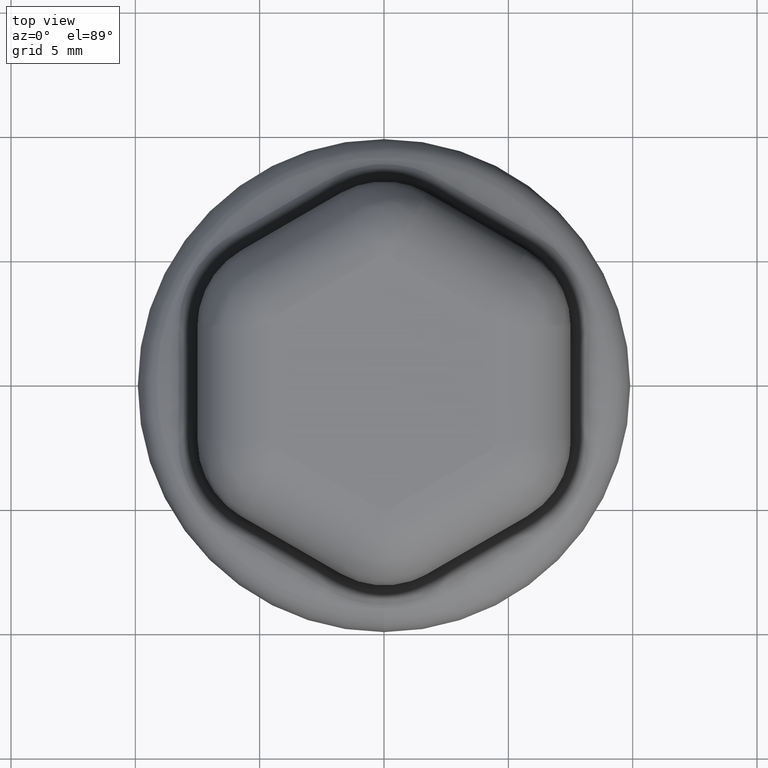
[diagram: clean part render]
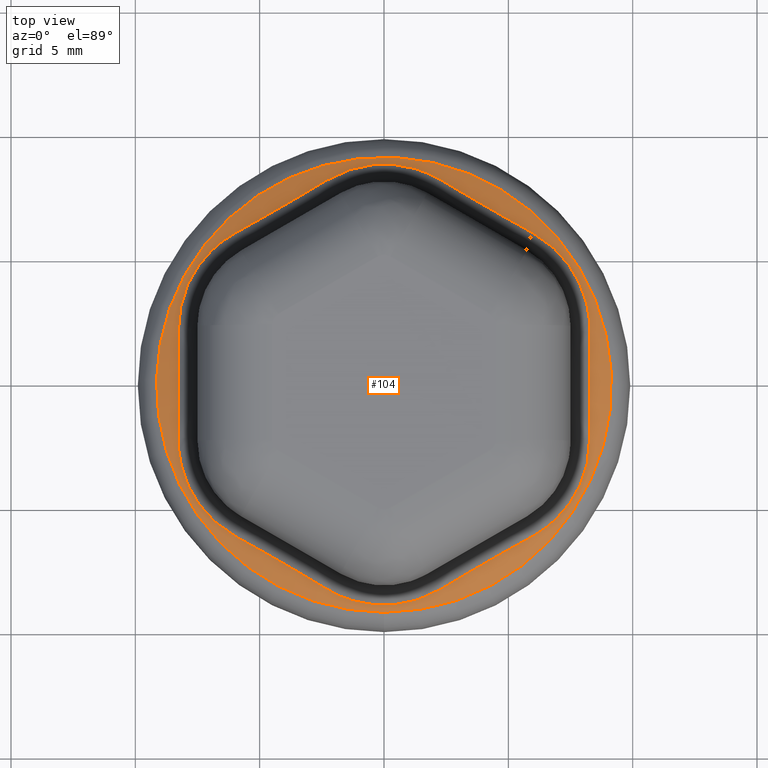
[diagram: same view with one face highlighted and labeled with its STEP entity id]
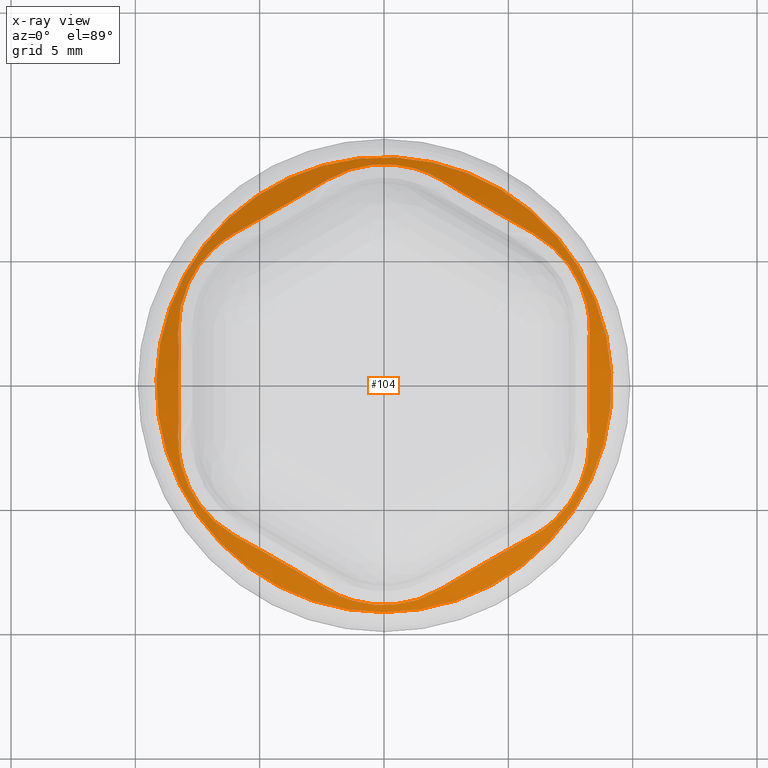
[diagram: x-ray of the same camera — body ghosted, the highlighted face saturated]
A machine part, top view. The second image highlights one B-rep face of the part: STEP entity #104.
The next image is the same camera in x-ray: the body ghosted, the highlighted face saturated — about 0% of this face is hidden behind the body in this view.
In plain terms, the highlighted conical surface has half-angle 60 deg.
Its self-contained STEP definition (entity closure, byte-faithful):
#104 = ADVANCED_FACE( '', ( #216, #217 ), #218, .T. );
#216 = FACE_BOUND( '', #1636, .T. );
#217 = FACE_OUTER_BOUND( '', #1637, .T. );
#218 = CONICAL_SURFACE( '', #1638, 9.90000000000000, 1.04719755119660 );
#1636 = EDGE_LOOP( '', ( #2901, #2902, #2903, #2904, #2905, #2906, #2907, #2908, #2909, #2910, #2911, #2912 ) );
#1637 = EDGE_LOOP( '', ( #2913 ) );
#1638 = AXIS2_PLACEMENT_3D( '', #2914, #2915, #2916 );
#2901 = ORIENTED_EDGE( '', *, *, #3314, .T. );
#2902 = ORIENTED_EDGE( '', *, *, #3310, .T. );
#2903 = ORIENTED_EDGE( '', *, *, #3312, .T. );
#2904 = ORIENTED_EDGE( '', *, *, #3315, .T. );
#2905 = ORIENTED_EDGE( '', *, *, #3316, .T. );
#2906 = ORIENTED_EDGE( '', *, *, #3317, .T. );
#2907 = ORIENTED_EDGE( '', *, *, #3318, .T. );
#2908 = ORIENTED_EDGE( '', *, *, #3319, .T. );
#2909 = ORIENTED_EDGE( '', *, *, #3320, .T. );
#2910 = ORIENTED_EDGE( '', *, *, #3321, .T. );
#2911 = ORIENTED_EDGE( '', *, *, #3322, .T. );
#2912 = ORIENTED_EDGE( '', *, *, #3323, .T. );
#2913 = ORIENTED_EDGE( '', *, *, #3305, .T. );
#2914 = CARTESIAN_POINT( '', ( 0.000000000000000, 1.44872487138979E-016, 2.36602540378443 ) );
#2915 = DIRECTION( '', ( 0.000000000000000, -6.12303176911189E-017, -1.00000000000000 ) );
#2916 = DIRECTION( '', ( 0.000000000000000, 1.00000000000000, -6.12303176911189E-017 ) );
#3305 = EDGE_CURVE( '', #3518, #3518, #3519, .T. );
#3310 = EDGE_CURVE( '', #3522, #3527, #3529, .T. );
#3312 = EDGE_CURVE( '', #3527, #3531, #3533, .T. );
#3314 = EDGE_CURVE( '', #3535, #3522, #3536, .T. );
#3315 = EDGE_CURVE( '', #3531, #3537, #3538, .T. );
#3316 = EDGE_CURVE( '', #3537, #3539, #3540, .T. );
#3317 = EDGE_CURVE( '', #3539, #3541, #3542, .T. );
#3318 = EDGE_CURVE( '', #3541, #3543, #3544, .T. );
#3319 = EDGE_CURVE( '', #3543, #3545, #3546, .T. );
#3320 = EDGE_CURVE( '', #3545, #3547, #3548, .T. );
#3321 = EDGE_CURVE( '', #3547, #3549, #3550, .T. );
#3322 = EDGE_CURVE( '', #3549, #3551, #3552, .T. );
#3323 = EDGE_CURVE( '', #3551, #3535, #3553, .T. );
#3518 = VERTEX_POINT( '', #4482 );
#3519 = CIRCLE( '', #4483, 9.15000000000001 );
#3522 = VERTEX_POINT( '', #4486 );
#3527 = VERTEX_POINT( '', #4521 );
#3529 = B_SPLINE_CURVE_WITH_KNOTS( '', 3, ( #4523, #4524, #4525, #4526, #4527, #4528, #4529, #4530, #4531, #4532, #4533, #4534, #4535, #4536, #4537, #4538, #4539, #4540, #4541, #4542, #4543, #4544, #4545, #4546, #4547, #4548, #4549, #4550, #4551 ), .UNSPECIFIED., .F., .F., ( 4, 2, 2, 1, 1, 1, 1, 1, 2, 2, 1, 1, 1, 1, 1, 2, 2, 1, 1, 1, 4 ), ( 0.000000000000000, 0.000305932596719819, 0.000382415745899774, 0.000458898895079729, 0.000611865193439639, 0.000917797790159460, 0.00122373038687928, 0.00152966298359910, 0.00183559558031893, 0.00191207872949888, 0.00198856187867884, 0.00214152817703875, 0.00244746077375858, 0.00275339337047841, 0.00305932596719824, 0.00336525856391807, 0.00367119116063790, 0.00397712375735773, 0.00428305635407756, 0.00458898895079739, 0.00489492154751722 ), .UNSPECIFIED. );
#3531 = VERTEX_POINT( '', #4553 );
#3533 = B_SPLINE_CURVE_WITH_KNOTS( '', 3, ( #4555, #4556, #4557, #4558, #4559, #4560, #4561, #4562, #4563, #4564, #4565, #4566, #4567, #4568, #4569, #4570, #4571, #4572 ), .UNSPECIFIED., .F., .F., ( 4, 2, 1, 1, 1, 2, 2, 2, 1, 2, 4 ), ( 0.000000000000000, 0.000531276195801026, 0.00106255239160205, 0.00159382858740308, 0.00212510478320410, 0.00265638097900513, 0.00292201907690564, 0.00305483812585590, 0.00318765717480615, 0.00371893337060718, 0.00425020956640820 ), .UNSPECIFIED. );
#3535 = VERTEX_POINT( '', #4584 );
#3536 = B_SPLINE_CURVE_WITH_KNOTS( '', 3, ( #4585, #4586, #4587, #4588, #4589, #4590, #4591, #4592, #4593, #4594, #4595, #4596, #4597, #4598, #4599, #4600, #4601, #4602 ), .UNSPECIFIED., .F., .F., ( 4, 2, 1, 1, 1, 2, 2, 2, 1, 2, 4 ), ( 0.000000000000000, 0.000531276195801025, 0.00106255239160205, 0.00159382858740308, 0.00212510478320410, 0.00265638097900513, 0.00292201907690564, 0.00305483812585590, 0.00318765717480615, 0.00371893337060718, 0.00425020956640820 ), .UNSPECIFIED. );
#3537 = VERTEX_POINT( '', #4603 );
#3538 = B_SPLINE_CURVE_WITH_KNOTS( '', 3, ( #4604, #4605, #4606, #4607, #4608, #4609, #4610, #4611, #4612, #4613, #4614, #4615, #4616, #4617, #4618, #4619, #4620, #4621, #4622, #4623, #4624, #4625, #4626, #4627, #4628, #4629, #4630, #4631, #4632 ), .UNSPECIFIED., .F., .F., ( 4, 2, 2, 1, 1, 1, 1, 1, 2, 2, 1, 1, 1, 1, 1, 2, 2, 1, 1, 1, 4 ), ( 0.000000000000000, 0.000305932596719830, 0.000382415745899787, 0.000458898895079745, 0.000611865193439660, 0.000917797790159491, 0.00122373038687932, 0.00152966298359915, 0.00183559558031898, 0.00191207872949894, 0.00198856187867890, 0.00214152817703881, 0.00244746077375863, 0.00275339337047845, 0.00305932596719828, 0.00336525856391810, 0.00367119116063792, 0.00397712375735775, 0.00428305635407757, 0.00458898895079739, 0.00489492154751722 ), .UNSPECIFIED. );
#3539 = VERTEX_POINT( '', #4633 );
#3540 = B_SPLINE_CURVE_WITH_KNOTS( '', 3, ( #4634, #4635, #4636, #4637, #4638, #4639, #4640, #4641, #4642, #4643, #4644, #4645, #4646, #4647, #4648, #4649, #4650, #4651 ), .UNSPECIFIED., .F., .F., ( 4, 2, 1, 1, 1, 2, 2, 2, 1, 2, 4 ), ( 0.000000000000000, 0.000531276195801026, 0.00106255239160205, 0.00159382858740308, 0.00212510478320411, 0.00265638097900513, 0.00292201907690565, 0.00305483812585590, 0.00318765717480616, 0.00371893337060718, 0.00425020956640821 ), .UNSPECIFIED. );
#3541 = VERTEX_POINT( '', #4652 );
#3542 = B_SPLINE_CURVE_WITH_KNOTS( '', 3, ( #4653, #4654, #4655, #4656, #4657, #4658, #4659, #4660, #4661, #4662, #4663, #4664, #4665, #4666, #4667, #4668, #4669, #4670, #4671, #4672, #4673, #4674, #4675, #4676, #4677, #4678, #4679, #4680, #4681 ), .UNSPECIFIED., .F., .F., ( 4, 2, 2, 1, 1, 1, 1, 1, 2, 2, 1, 1, 1, 1, 1, 2, 2, 1, 1, 1, 4 ), ( 4.33680868994202E-019, 0.000305932596719821, 0.000382415745899777, 0.000458898895079733, 0.000611865193439646, 0.000917797790159471, 0.00122373038687930, 0.00152966298359912, 0.00183559558031895, 0.00191207872949890, 0.00198856187867886, 0.00214152817703877, 0.00244746077375860, 0.00275339337047843, 0.00305932596719825, 0.00336525856391808, 0.00367119116063791, 0.00397712375735773, 0.00428305635407756, 0.00458898895079739, 0.00489492154751722 ), .UNSPECIFIED. );
#3543 = VERTEX_POINT( '', #4682 );
#3544 = B_SPLINE_CURVE_WITH_KNOTS( '', 3, ( #4683, #4684, #4685, #4686, #4687, #4688, #4689, #4690, #4691, #4692, #4693, #4694, #4695, #4696, #4697, #4698, #4699, #4700 ), .UNSPECIFIED., .F., .F., ( 4, 2, 1, 1, 1, 2, 2, 2, 1, 2, 4 ), ( 0.000000000000000, 0.000531276195801025, 0.00106255239160205, 0.00159382858740308, 0.00212510478320410, 0.00265638097900512, 0.00292201907690563, 0.00305483812585589, 0.00318765717480614, 0.00371893337060717, 0.00425020956640820 ), .UNSPECIFIED. );
#3545 = VERTEX_POINT( '', #4701 );
#3546 = B_SPLINE_CURVE_WITH_KNOTS( '', 3, ( #4702, #4703, #4704, #4705, #4706, #4707, #4708, #4709, #4710, #4711, #4712, #4713, #4714, #4715, #4716, #4717, #4718, #4719, #4720, #4721, #4722, #4723, #4724, #4725, #4726, #4727, #4728, #4729, #4730 ), .UNSPECIFIED., .F., .F., ( 4, 2, 2, 1, 1, 1, 1, 1, 2, 2, 1, 1, 1, 1, 1, 2, 2, 1, 1, 1, 4 ), ( 0.000000000000000, 0.000305932596719831, 0.000382415745899789, 0.000458898895079747, 0.000611865193439663, 0.000917797790159497, 0.00122373038687933, 0.00152966298359917, 0.00183559558031900, 0.00191207872949896, 0.00198856187867891, 0.00214152817703882, 0.00244746077375864, 0.00275339337047846, 0.00305932596719828, 0.00336525856391811, 0.00367119116063793, 0.00397712375735775, 0.00428305635407757, 0.00458898895079740, 0.00489492154751722 ), .UNSPECIFIED. );
#3547 = VERTEX_POINT( '', #4731 );
#3548 = B_SPLINE_CURVE_WITH_KNOTS( '', 3, ( #4732, #4733, #4734, #4735, #4736, #4737, #4738, #4739, #4740, #4741, #4742, #4743, #4744, #4745, #4746, #4747, #4748, #4749 ), .UNSPECIFIED., .F., .F., ( 4, 2, 1, 1, 1, 2, 2, 2, 1, 2, 4 ), ( 0.000000000000000, 0.000531276195801026, 0.00106255239160205, 0.00159382858740308, 0.00212510478320410, 0.00265638097900513, 0.00292201907690564, 0.00305483812585590, 0.00318765717480615, 0.00371893337060718, 0.00425020956640821 ), .UNSPECIFIED. );
#3549 = VERTEX_POINT( '', #4750 );
#3550 = B_SPLINE_CURVE_WITH_KNOTS( '', 3, ( #4751, #4752, #4753, #4754, #4755, #4756, #4757, #4758, #4759, #4760, #4761, #4762, #4763, #4764, #4765, #4766, #4767, #4768, #4769, #4770, #4771, #4772, #4773, #4774, #4775, #4776, #4777, #4778, #4779 ), .UNSPECIFIED., .F., .F., ( 4, 2, 2, 1, 1, 1, 1, 1, 2, 2, 1, 1, 1, 1, 1, 2, 2, 1, 1, 1, 4 ), ( 0.000000000000000, 0.000305932596719829, 0.000382415745899786, 0.000458898895079743, 0.000611865193439658, 0.000917797790159486, 0.00122373038687932, 0.00152966298359914, 0.00183559558031897, 0.00191207872949893, 0.00198856187867888, 0.00214152817703880, 0.00244746077375862, 0.00275339337047845, 0.00305932596719827, 0.00336525856391809, 0.00367119116063792, 0.00397712375735774, 0.00428305635407757, 0.00458898895079739, 0.00489492154751722 ), .UNSPECIFIED. );
#3551 = VERTEX_POINT( '', #4780 );
#3552 = B_SPLINE_CURVE_WITH_KNOTS( '', 3, ( #4781, #4782, #4783, #4784, #4785, #4786, #4787, #4788, #4789, #4790, #4791, #4792, #4793, #4794, #4795, #4796, #4797, #4798 ), .UNSPECIFIED., .F., .F., ( 4, 2, 1, 1, 1, 2, 2, 2, 1, 2, 4 ), ( 0.000000000000000, 0.000531276195801026, 0.00106255239160205, 0.00159382858740308, 0.00212510478320410, 0.00265638097900513, 0.00292201907690564, 0.00305483812585590, 0.00318765717480615, 0.00371893337060718, 0.00425020956640820 ), .UNSPECIFIED. );
#3553 = B_SPLINE_CURVE_WITH_KNOTS( '', 3, ( #4799, #4800, #4801, #4802, #4803, #4804, #4805, #4806, #4807, #4808, #4809, #4810, #4811, #4812, #4813, #4814, #4815, #4816, #4817, #4818, #4819, #4820, #4821, #4822, #4823, #4824, #4825, #4826, #4827 ), .UNSPECIFIED., .F., .F., ( 4, 2, 2, 1, 1, 1, 1, 1, 2, 2, 1, 1, 1, 1, 1, 2, 2, 1, 1, 1, 4 ), ( 4.33680868994202E-019, 0.000305932596719822, 0.000382415745899779, 0.000458898895079735, 0.000611865193439647, 0.000917797790159473, 0.00122373038687930, 0.00152966298359913, 0.00183559558031895, 0.00191207872949891, 0.00198856187867887, 0.00214152817703878, 0.00244746077375860, 0.00275339337047843, 0.00305932596719826, 0.00336525856391808, 0.00367119116063791, 0.00397712375735774, 0.00428305635407756, 0.00458898895079739, 0.00489492154751722 ), .UNSPECIFIED. );
#4482 = CARTESIAN_POINT( '', ( 0.000000000000000, -9.15000000000001, 2.79903810567665 ) );
#4483 = AXIS2_PLACEMENT_3D( '', #5278, #5279, #5280 );
#4486 = CARTESIAN_POINT( '', ( 5.97533104756189, 6.10359667250466, 3.15031345751025 ) );
#4521 = CARTESIAN_POINT( '', ( 8.27353529662415, 2.12299014695814, 3.15031345751025 ) );
#4523 = CARTESIAN_POINT( '', ( 5.97533104756189, 6.10359667250466, 3.15031345751025 ) );
#4524 = CARTESIAN_POINT( '', ( 6.06370105840983, 6.05502382574819, 3.13466088655042 ) );
#4525 = CARTESIAN_POINT( '', ( 6.15043367421124, 6.00344222798260, 3.11995533240995 ) );
#4526 = CARTESIAN_POINT( '', ( 6.25678116258254, 5.93517394375792, 3.10273703300507 ) );
#4527 = CARTESIAN_POINT( '', ( 6.27793707454782, 5.92133664568301, 3.09935331380747 ) );
#4528 = CARTESIAN_POINT( '', ( 6.31994011128267, 5.89335039010389, 3.09271773751738 ) );
#4529 = CARTESIAN_POINT( '', ( 6.38251710194348, 5.85088068846419, 3.08295640162640 ) );
#4530 = CARTESIAN_POINT( '', ( 6.52555459213102, 5.74837346681437, 3.06150898358349 ) );
#4531 = CARTESIAN_POINT( '', ( 6.72147813122799, 5.59229154706956, 3.03458877511924 ) );
#4532 = CARTESIAN_POINT( '', ( 6.94322944448473, 5.38970257541155, 3.00807793266292 ) );
#4533 = CARTESIAN_POINT( '', ( 7.15155075178573, 5.17175094361030, 2.98730235946904 ) );
#4534 = CARTESIAN_POINT( '', ( 7.28130675414834, 5.01601804872510, 2.97730110531768 ) );
#4535 = CARTESIAN_POINT( '', ( 7.35945634757087, 4.91531628768460, 2.97228281716163 ) );
#4536 = CARTESIAN_POINT( '', ( 7.37489856991075, 4.89505876461139, 2.97134348312564 ) );
#4537 = CARTESIAN_POINT( '', ( 7.40538145938462, 4.85434919667169, 2.96959405207174 ) );
#4538 = CARTESIAN_POINT( '', ( 7.45051773835728, 4.79297451656432, 2.96716287272035 ) );
#4539 = CARTESIAN_POINT( '', ( 7.55175092326567, 4.64761128054453, 2.96282870670483 ) );
#4540 = CARTESIAN_POINT( '', ( 7.68485799214472, 4.43387437083835, 2.96040062443478 ) );
#4541 = CARTESIAN_POINT( '', ( 7.82643646536729, 4.16781159867171, 2.96341087034859 ) );
#4542 = CARTESIAN_POINT( '', ( 7.94987899243765, 3.89217788295468, 2.97235047600628 ) );
#4543 = CARTESIAN_POINT( '', ( 8.01992476886664, 3.70195797093649, 2.98233509841634 ) );
#4544 = CARTESIAN_POINT( '', ( 8.08367743460382, 3.50841729131060, 2.99440469443230 ) );
#4545 = CARTESIAN_POINT( '', ( 8.11200478878512, 3.41120661950364, 3.00140615098900 ) );
#4546 = CARTESIAN_POINT( '', ( 8.16178858674446, 3.21597983253240, 3.01729702188211 ) );
#4547 = CARTESIAN_POINT( '', ( 8.20470557034853, 3.01993294558525, 3.03507694897649 ) );
#4548 = CARTESIAN_POINT( '', ( 8.24889306727805, 2.72346102150788, 3.06738697159861 ) );
#4549 = CARTESIAN_POINT( '', ( 8.27302598398934, 2.42461479013872, 3.10540432693602 ) );
#4550 = CARTESIAN_POINT( '', ( 8.27565481863560, 2.22379943554250, 3.13466209897194 ) );
#4551 = CARTESIAN_POINT( '', ( 8.27353529662415, 2.12299014695814, 3.15031345751025 ) );
#4553 = CARTESIAN_POINT( '', ( 8.27353529662415, -2.12299014695814, 3.15031345751025 ) );
#4555 = CARTESIAN_POINT( '', ( 8.27353529662415, 2.12299014695814, 3.15031345751025 ) );
#4556 = CARTESIAN_POINT( '', ( 8.26983475855589, 1.94698413804413, 3.17763964132817 ) );
#4557 = CARTESIAN_POINT( '', ( 8.26649772354413, 1.77083381961615, 3.20186613572889 ) );
#4558 = CARTESIAN_POINT( '', ( 8.26067069789646, 1.41822640722744, 3.24374008205989 ) );
#4559 = CARTESIAN_POINT( '', ( 8.25569145490720, 1.06531213802335, 3.27903331417591 ) );
#4560 = CARTESIAN_POINT( '', ( 8.25106290429318, 0.534975804215642, 3.31130394730319 ) );
#4561 = CARTESIAN_POINT( '', ( 8.24947879657556, 0.00364353599115344, 3.32225692582110 ) );
#4562 = CARTESIAN_POINT( '', ( 8.25050775928951, -0.351251640793457, 3.31514291378919 ) );
#4563 = CARTESIAN_POINT( '', ( 8.25204973918207, -0.617674910593655, 3.30441587802473 ) );
#4564 = CARTESIAN_POINT( '', ( 8.25269176683085, -0.706524602162597, 3.29994257336327 ) );
#4565 = CARTESIAN_POINT( '', ( 8.25384243499703, -0.839861542432009, 3.29189646690185 ) );
#4566 = CARTESIAN_POINT( '', ( 8.25425736081434, -0.884329050981608, 3.28899096458533 ) );
#4567 = CARTESIAN_POINT( '', ( 8.25514810711896, -0.973222525207466, 3.28274156752851 ) );
#4568 = CARTESIAN_POINT( '', ( 8.25752664285307, -1.19533124505681, 3.26602505898709 ) );
#4569 = CARTESIAN_POINT( '', ( 8.26064891886393, -1.41682122788283, 3.24389574781520 ) );
#4570 = CARTESIAN_POINT( '', ( 8.26649003581644, -1.77045545498755, 3.20192221862969 ) );
#4571 = CARTESIAN_POINT( '', ( 8.26983294336894, -1.94689780362374, 3.17765304536054 ) );
#4572 = CARTESIAN_POINT( '', ( 8.27353529662415, -2.12299014695814, 3.15031345751025 ) );
#4584 = CARTESIAN_POINT( '', ( 2.29820424906226, 8.22658681946281, 3.15031345751025 ) );
#4585 = CARTESIAN_POINT( '', ( 2.29820424906226, 8.22658681946281, 3.15031345751025 ) );
#4586 = CARTESIAN_POINT( '', ( 2.44877965496638, 8.13537905503101, 3.17763964132817 ) );
#4587 = CARTESIAN_POINT( '', ( 2.59966178810385, 8.04441393872352, 3.20186613572889 ) );
#4588 = CARTESIAN_POINT( '', ( 2.90211525197133, 7.86306388028978, 3.24374008205989 ) );
#4589 = CARTESIAN_POINT( '', ( 3.20525816334999, 7.68229433587515, 3.27903402875314 ) );
#4590 = CARTESIAN_POINT( '', ( 3.66222881528583, 7.41311798544912, 3.31130394730319 ) );
#4591 = CARTESIAN_POINT( '', ( 4.12158400355984, 7.14607997381109, 3.32225692582110 ) );
#4592 = CARTESIAN_POINT( '', ( 4.42944672369286, 6.96952349326862, 3.31514291378919 ) );
#4593 = CARTESIAN_POINT( '', ( 4.66094703344542, 6.83764725212759, 3.30441587802473 ) );
#4594 = CARTESIAN_POINT( '', ( 4.73821413728692, 6.79377841859690, 3.29994257336327 ) );
#4595 = CARTESIAN_POINT( '', ( 4.85426264890622, 6.72810645632543, 3.29189646690185 ) );
#4596 = CARTESIAN_POINT( '', ( 4.89298010386182, 6.70623203834911, 3.28899096458533 ) );
#4597 = CARTESIAN_POINT( '', ( 4.97040948392438, 6.66255671016430, 3.28274156752851 ) );
#4598 = CARTESIAN_POINT( '', ( 5.16395054558302, 6.55356222260919, 3.26602505898709 ) );
#4599 = CARTESIAN_POINT( '', ( 5.35732763539956, 6.44552120153921, 3.24389574781520 ) );
#4600 = CARTESIAN_POINT( '', ( 5.66650441819618, 6.27376264365419, 3.20192221862969 ) );
#4601 = CARTESIAN_POINT( '', ( 5.82097942819476, 6.18843651219908, 3.17765304536054 ) );
#4602 = CARTESIAN_POINT( '', ( 5.97533104756189, 6.10359667250466, 3.15031345751025 ) );
#4603 = CARTESIAN_POINT( '', ( 5.97533104756189, -6.10359667250466, 3.15031345751025 ) );
#4604 = CARTESIAN_POINT( '', ( 8.27353529662415, -2.12299014695814, 3.15031345751025 ) );
#4605 = CARTESIAN_POINT( '', ( 8.27565498282289, -2.22380724466341, 3.13466088655042 ) );
#4606 = CARTESIAN_POINT( '', ( 8.27435031669080, -2.32471069216690, 3.11995533240995 ) );
#4607 = CARTESIAN_POINT( '', ( 8.26840199246510, -2.45094446083746, 3.10273703300507 ) );
#4608 = CARTESIAN_POINT( '', ( 8.26699649679514, -2.47618466707706, 3.09935331380746 ) );
#4609 = CARTESIAN_POINT( '', ( 8.26376120687424, -2.52655349171510, 3.09271773751738 ) );
#4610 = CARTESIAN_POINT( '', ( 8.25826986169352, -2.60198160613959, 3.08295640162639 ) );
#4611 = CARTESIAN_POINT( '', ( 8.24101474876719, -2.77710931716047, 3.06150898358350 ) );
#4612 = CARTESIAN_POINT( '', ( 8.20380561074521, -3.02482503909021, 3.03458877511924 ) );
#4613 = CARTESIAN_POINT( '', ( 8.13923407139118, -3.31816179552212, 3.00807793266292 ) );
#4614 = CARTESIAN_POINT( '', ( 8.05464307510552, -3.60754915569499, 2.98730235946905 ) );
#4615 = CARTESIAN_POINT( '', ( 7.98465243311136, -3.79778759747712, 2.97730110531768 ) );
#4616 = CARTESIAN_POINT( '', ( 7.93651694655572, -3.91581801119671, 2.97228281716163 ) );
#4617 = CARTESIAN_POINT( '', ( 7.92669452812651, -3.93932012957054, 2.97134348312564 ) );
#4618 = CARTESIAN_POINT( '', ( 7.90668045285058, -3.98607387020552, 2.96959405207174 ) );
#4619 = CARTESIAN_POINT( '', ( 7.87609656021478, -4.05585037448183, 2.96716287272035 ) );
#4620 = CARTESIAN_POINT( '', ( 7.80082489749953, -4.21620250232839, 2.96282870670483 ) );
#4621 = CARTESIAN_POINT( '', ( 7.68227683840712, -4.43834506025402, 2.96040062443478 ) );
#4622 = CARTESIAN_POINT( '', ( 7.52264895532078, -4.69398700077710, 2.96341087034859 ) );
#4623 = CARTESIAN_POINT( '', ( 7.34566413985144, -4.93870804699041, 2.97235060603289 ) );
#4624 = CARTESIAN_POINT( '', ( 7.21595203100662, -5.09447960081031, 2.98233509841634 ) );
#4625 = CARTESIAN_POINT( '', ( 7.08021721865348, -5.24646136871062, 2.99440469443230 ) );
#4626 = CARTESIAN_POINT( '', ( 7.01019398444035, -5.31959891295711, 3.00140615098900 ) );
#4627 = CARTESIAN_POINT( '', ( 6.86601452640371, -5.46032634017239, 3.01729702188211 ) );
#4628 = CARTESIAN_POINT( '', ( 6.71769143377667, -5.59551698170089, 3.03507694897648 ) );
#4629 = CARTESIAN_POINT( '', ( 6.48303296448158, -5.78202043861019, 3.06738697159861 ) );
#4630 = CARTESIAN_POINT( '', ( 6.23629099464627, -5.95234327323416, 3.10540432693602 ) );
#4631 = CARTESIAN_POINT( '', ( 6.06369421341911, -6.05502758811828, 3.13466209897194 ) );
#4632 = CARTESIAN_POINT( '', ( 5.97533104756189, -6.10359667250466, 3.15031345751025 ) );
#4633 = CARTESIAN_POINT( '', ( 2.29820424906226, -8.22658681946281, 3.15031345751025 ) );
#4634 = CARTESIAN_POINT( '', ( 5.97533104756189, -6.10359667250466, 3.15031345751025 ) );
#4635 = CARTESIAN_POINT( '', ( 5.82105510358951, -6.18839491698689, 3.17763964132817 ) );
#4636 = CARTESIAN_POINT( '', ( 5.66683593544028, -6.27358011910737, 3.20186613572889 ) );
#4637 = CARTESIAN_POINT( '', ( 5.35855544592513, -6.44483747306234, 3.24374008205989 ) );
#4638 = CARTESIAN_POINT( '', ( 5.05043297254219, -6.61698216308612, 3.27903402875314 ) );
#4639 = CARTESIAN_POINT( '', ( 4.58883408900735, -6.87814218123348, 3.31130394730319 ) );
#4640 = CARTESIAN_POINT( '', ( 4.12789479301572, -7.14243643781994, 3.32225692582110 ) );
#4641 = CARTESIAN_POINT( '', ( 3.82106103559666, -7.32077513406207, 3.31514291378919 ) );
#4642 = CARTESIAN_POINT( '', ( 3.59110270573665, -7.45532216272125, 3.30441587802473 ) );
#4643 = CARTESIAN_POINT( '', ( 3.51447762954392, -7.50030302075949, 3.29994257336327 ) );
#4644 = CARTESIAN_POINT( '', ( 3.39957978609081, -7.56796799875744, 3.29189646690186 ) );
#4645 = CARTESIAN_POINT( '', ( 3.36127725695251, -7.59056108933071, 3.28899096458533 ) );
#4646 = CARTESIAN_POINT( '', ( 3.28473862319457, -7.63577923537177, 3.28274156752851 ) );
#4647 = CARTESIAN_POINT( '', ( 3.09357609727006, -7.74889346766600, 3.26602505898709 ) );
#4648 = CARTESIAN_POINT( '', ( 2.90332128346437, -7.86234242942205, 3.24389574781520 ) );
#4649 = CARTESIAN_POINT( '', ( 2.59998561762026, -8.04421809864175, 3.20192221862969 ) );
#4650 = CARTESIAN_POINT( '', ( 2.44885351517419, -8.13533431582281, 3.17765304536055 ) );
#4651 = CARTESIAN_POINT( '', ( 2.29820424906226, -8.22658681946280, 3.15031345751025 ) );
#4652 = CARTESIAN_POINT( '', ( -2.29820424906227, -8.22658681946280, 3.15031345751025 ) );
#4653 = CARTESIAN_POINT( '', ( 2.29820424906226, -8.22658681946281, 3.15031345751025 ) );
#4654 = CARTESIAN_POINT( '', ( 2.21195392441305, -8.27883107041160, 3.13466088655042 ) );
#4655 = CARTESIAN_POINT( '', ( 2.12391664247956, -8.32815292014950, 3.11995533240996 ) );
#4656 = CARTESIAN_POINT( '', ( 2.01162082988256, -8.38611840459538, 3.10273703300507 ) );
#4657 = CARTESIAN_POINT( '', ( 1.98905942224731, -8.39752131276008, 3.09935331380747 ) );
#4658 = CARTESIAN_POINT( '', ( 1.94382109559156, -8.41990388181899, 3.09271773751738 ) );
#4659 = CARTESIAN_POINT( '', ( 1.87575275975003, -8.45286229460378, 3.08295640162640 ) );
#4660 = CARTESIAN_POINT( '', ( 1.71546015663616, -8.52548278397485, 3.06150898358350 ) );
#4661 = CARTESIAN_POINT( '', ( 1.48232747951722, -8.61711658615977, 3.03458877511924 ) );
#4662 = CARTESIAN_POINT( '', ( 1.19600462690645, -8.70786437093367, 3.00807793266292 ) );
#4663 = CARTESIAN_POINT( '', ( 0.903092323319793, -8.77930009930528, 2.98730235946905 ) );
#4664 = CARTESIAN_POINT( '', ( 0.703345678963019, -8.81380564620223, 2.97730110531768 ) );
#4665 = CARTESIAN_POINT( '', ( 0.577060598984849, -8.83113429888130, 2.97228281716163 ) );
#4666 = CARTESIAN_POINT( '', ( 0.551795958215758, -8.83437889418193, 2.97134348312564 ) );
#4667 = CARTESIAN_POINT( '', ( 0.501298993465956, -8.84042306687721, 2.96959405207174 ) );
#4668 = CARTESIAN_POINT( '', ( 0.425578821857496, -8.84882489104614, 2.96716287272035 ) );
#4669 = CARTESIAN_POINT( '', ( 0.249073974233849, -8.86381378287292, 2.96282870670483 ) );
#4670 = CARTESIAN_POINT( '', ( -0.00258115373760125, -8.87221943109238, 2.96040062443478 ) );
#4671 = CARTESIAN_POINT( '', ( -0.303787510046506, -8.86179859944881, 2.96341087034859 ) );
#4672 = CARTESIAN_POINT( '', ( -0.604214560642608, -8.83088577627491, 2.97235060603289 ) );
#4673 = CARTESIAN_POINT( '', ( -0.803972737860025, -8.79643757174680, 2.98233509841634 ) );
#4674 = CARTESIAN_POINT( '', ( -1.00346021595034, -8.75487866002123, 2.99440469443230 ) );
#4675 = CARTESIAN_POINT( '', ( -1.10181080434477, -8.73080553246074, 3.00140615098900 ) );
#4676 = CARTESIAN_POINT( '', ( -1.29577406034075, -8.67630617270479, 3.01729702188211 ) );
#4677 = CARTESIAN_POINT( '', ( -1.48701413657186, -8.61544992728614, 3.03507694897649 ) );
#4678 = CARTESIAN_POINT( '', ( -1.76586010279648, -8.50548146011807, 3.06738697159862 ) );
#4679 = CARTESIAN_POINT( '', ( -2.03673498934306, -8.37695806337288, 3.10540432693602 ) );
#4680 = CARTESIAN_POINT( '', ( -2.21196060521650, -8.27882702366078, 3.13466209897194 ) );
#4681 = CARTESIAN_POINT( '', ( -2.29820424906227, -8.22658681946280, 3.15031345751025 ) );
#4682 = CARTESIAN_POINT( '', ( -5.97533104756188, -6.10359667250466, 3.15031345751025 ) );
#4683 = CARTESIAN_POINT( '', ( -2.29820424906227, -8.22658681946280, 3.15031345751025 ) );
#4684 = CARTESIAN_POINT( '', ( -2.44877965496638, -8.13537905503101, 3.17763964132817 ) );
#4685 = CARTESIAN_POINT( '', ( -2.59966178810385, -8.04441393872352, 3.20186613572889 ) );
#4686 = CARTESIAN_POINT( '', ( -2.90211525197133, -7.86306388028978, 3.24374008205989 ) );
#4687 = CARTESIAN_POINT( '', ( -3.20525835296546, -7.68229459476742, 3.27903331417591 ) );
#4688 = CARTESIAN_POINT( '', ( -3.66222881528583, -7.41311798544912, 3.31130394730319 ) );
#4689 = CARTESIAN_POINT( '', ( -4.12158402543459, -7.14608000042960, 3.32225680753951 ) );
#4690 = CARTESIAN_POINT( '', ( -4.42944672369286, -6.96952349326862, 3.31514291378919 ) );
#4691 = CARTESIAN_POINT( '', ( -4.66094703344542, -6.83764725212759, 3.30441587802473 ) );
#4692 = CARTESIAN_POINT( '', ( -4.73821413728692, -6.79377841859689, 3.29994257336327 ) );
#4693 = CARTESIAN_POINT( '', ( -4.85426264890622, -6.72810645632543, 3.29189646690186 ) );
#4694 = CARTESIAN_POINT( '', ( -4.89298010386182, -6.70623203834911, 3.28899096458533 ) );
#4695 = CARTESIAN_POINT( '', ( -4.97040948392438, -6.66255671016430, 3.28274156752851 ) );
#4696 = CARTESIAN_POINT( '', ( -5.16395054558301, -6.55356222260919, 3.26602505898709 ) );
#4697 = CARTESIAN_POINT( '', ( -5.35732763539956, -6.44552120153921, 3.24389574781520 ) );
#4698 = CARTESIAN_POINT( '', ( -5.66650441819617, -6.27376264365420, 3.20192221862969 ) );
#4699 = CARTESIAN_POINT( '', ( -5.82097942819475, -6.18843651219908, 3.17765304536055 ) );
#4700 = CARTESIAN_POINT( '', ( -5.97533104756188, -6.10359667250466, 3.15031345751025 ) );
#4701 = CARTESIAN_POINT( '', ( -8.27353529662415, -2.12299014695814, 3.15031345751025 ) );
#4702 = CARTESIAN_POINT( '', ( -5.97533104756188, -6.10359667250466, 3.15031345751025 ) );
#4703 = CARTESIAN_POINT( '', ( -6.06370105840983, -6.05502382574819, 3.13466088655042 ) );
#4704 = CARTESIAN_POINT( '', ( -6.15043367421124, -6.00344222798260, 3.11995533240996 ) );
#4705 = CARTESIAN_POINT( '', ( -6.25678116258254, -5.93517394375792, 3.10273703300507 ) );
#4706 = CARTESIAN_POINT( '', ( -6.27793707454781, -5.92133664568301, 3.09935331380747 ) );
#4707 = CARTESIAN_POINT( '', ( -6.31994011128267, -5.89335039010389, 3.09271773751738 ) );
#4708 = CARTESIAN_POINT( '', ( -6.38251710194347, -5.85088068846419, 3.08295640162640 ) );
#4709 = CARTESIAN_POINT( '', ( -6.52555459213101, -5.74837346681437, 3.06150898358350 ) );
#4710 = CARTESIAN_POINT( '', ( -6.72147813122798, -5.59229154706956, 3.03458877511924 ) );
#4711 = CARTESIAN_POINT( '', ( -6.94322944448473, -5.38970257541155, 3.00807793266292 ) );
#4712 = CARTESIAN_POINT( '', ( -7.15155075178572, -5.17175094361030, 2.98730235946905 ) );
#4713 = CARTESIAN_POINT( '', ( -7.28130675414833, -5.01601804872511, 2.97730110531768 ) );
#4714 = CARTESIAN_POINT( '', ( -7.35945634757086, -4.91531628768460, 2.97228281716163 ) );
#4715 = CARTESIAN_POINT( '', ( -7.37489856991075, -4.89505876461139, 2.97134348312564 ) );
#4716 = CARTESIAN_POINT( '', ( -7.40538145938462, -4.85434919667170, 2.96959405207174 ) );
#4717 = CARTESIAN_POINT( '', ( -7.45051773835727, -4.79297451656432, 2.96716287272035 ) );
#4718 = CARTESIAN_POINT( '', ( -7.55175092326567, -4.64761128054453, 2.96282870670483 ) );
#4719 = CARTESIAN_POINT( '', ( -7.68485799214471, -4.43387437083836, 2.96040062443478 ) );
#4720 = CARTESIAN_POINT( '', ( -7.82643646536728, -4.16781159867172, 2.96341087034859 ) );
#4721 = CARTESIAN_POINT( '', ( -7.94987870049404, -3.89217772928451, 2.97235060603289 ) );
#4722 = CARTESIAN_POINT( '', ( -8.01992476886664, -3.70195797093649, 2.98233509841634 ) );
#4723 = CARTESIAN_POINT( '', ( -8.08367743460381, -3.50841729131061, 2.99440469443231 ) );
#4724 = CARTESIAN_POINT( '', ( -8.11200478878511, -3.41120661950364, 3.00140615098900 ) );
#4725 = CARTESIAN_POINT( '', ( -8.16178858674445, -3.21597983253240, 3.01729702188211 ) );
#4726 = CARTESIAN_POINT( '', ( -8.20470557034852, -3.01993294558526, 3.03507694897649 ) );
#4727 = CARTESIAN_POINT( '', ( -8.24889306727805, -2.72346102150788, 3.06738697159862 ) );
#4728 = CARTESIAN_POINT( '', ( -8.27302598398934, -2.42461479013872, 3.10540432693602 ) );
#4729 = CARTESIAN_POINT( '', ( -8.27565481863559, -2.22379943554251, 3.13466209897194 ) );
#4730 = CARTESIAN_POINT( '', ( -8.27353529662414, -2.12299014695814, 3.15031345751025 ) );
#4731 = CARTESIAN_POINT( '', ( -8.27353529662415, 2.12299014695814, 3.15031345751025 ) );
#4732 = CARTESIAN_POINT( '', ( -8.27353529662415, -2.12299014695814, 3.15031345751025 ) );
#4733 = CARTESIAN_POINT( '', ( -8.26983475855588, -1.94698413804413, 3.17763964132817 ) );
#4734 = CARTESIAN_POINT( '', ( -8.26649772354413, -1.77083381961616, 3.20186613572889 ) );
#4735 = CARTESIAN_POINT( '', ( -8.26067069789645, -1.41822640722744, 3.24374008205989 ) );
#4736 = CARTESIAN_POINT( '', ( -8.25569145490720, -1.06531213802335, 3.27903331417591 ) );
#4737 = CARTESIAN_POINT( '', ( -8.25106310488900, -0.534975781717791, 3.31130348406721 ) );
#4738 = CARTESIAN_POINT( '', ( -8.24947883056524, -0.00364353035631615, 3.32225680753951 ) );
#4739 = CARTESIAN_POINT( '', ( -8.25050775928951, 0.351251640793456, 3.31514291378919 ) );
#4740 = CARTESIAN_POINT( '', ( -8.25204973918207, 0.617674910593655, 3.30441587802473 ) );
#4741 = CARTESIAN_POINT( '', ( -8.25269176683084, 0.706524602162596, 3.29994257336327 ) );
#4742 = CARTESIAN_POINT( '', ( -8.25384243499703, 0.839861542432008, 3.29189646690185 ) );
#4743 = CARTESIAN_POINT( '', ( -8.25425736081433, 0.884329050981608, 3.28899096458533 ) );
#4744 = CARTESIAN_POINT( '', ( -8.25514810711895, 0.973222525207466, 3.28274156752851 ) );
#4745 = CARTESIAN_POINT( '', ( -8.25752664285307, 1.19533124505681, 3.26602505898709 ) );
#4746 = CARTESIAN_POINT( '', ( -8.26064891886393, 1.41682122788283, 3.24389574781520 ) );
#4747 = CARTESIAN_POINT( '', ( -8.26649003581644, 1.77045545498756, 3.20192221862969 ) );
#4748 = CARTESIAN_POINT( '', ( -8.26983294336894, 1.94689780362374, 3.17765304536054 ) );
#4749 = CARTESIAN_POINT( '', ( -8.27353529662415, 2.12299014695814, 3.15031345751025 ) );
#4750 = CARTESIAN_POINT( '', ( -5.97533104756188, 6.10359667250466, 3.15031345751025 ) );
#4751 = CARTESIAN_POINT( '', ( -8.27353529662415, 2.12299014695814, 3.15031345751025 ) );
#4752 = CARTESIAN_POINT( '', ( -8.27565498282288, 2.22380724466341, 3.13466088655042 ) );
#4753 = CARTESIAN_POINT( '', ( -8.27435031669079, 2.32471069216690, 3.11995533240996 ) );
#4754 = CARTESIAN_POINT( '', ( -8.26840199246510, 2.45094446083746, 3.10273703300508 ) );
#4755 = CARTESIAN_POINT( '', ( -8.26699649679513, 2.47618466707706, 3.09935331380747 ) );
#4756 = CARTESIAN_POINT( '', ( -8.26376120687423, 2.52655349171510, 3.09271773751738 ) );
#4757 = CARTESIAN_POINT( '', ( -8.25826986169351, 2.60198160613959, 3.08295640162640 ) );
#4758 = CARTESIAN_POINT( '', ( -8.24101474876718, 2.77710931716048, 3.06150898358350 ) );
#4759 = CARTESIAN_POINT( '', ( -8.20380561074521, 3.02482503909021, 3.03458877511924 ) );
#4760 = CARTESIAN_POINT( '', ( -8.13923407139117, 3.31816179552212, 3.00807793266292 ) );
#4761 = CARTESIAN_POINT( '', ( -8.05464350505875, 3.60754924151029, 2.98730224735441 ) );
#4762 = CARTESIAN_POINT( '', ( -7.98465243311135, 3.79778759747712, 2.97730110531768 ) );
#4763 = CARTESIAN_POINT( '', ( -7.93651694655571, 3.91581801119671, 2.97228281716164 ) );
#4764 = CARTESIAN_POINT( '', ( -7.92669452812651, 3.93932012957054, 2.97134348312564 ) );
#4765 = CARTESIAN_POINT( '', ( -7.90668045285058, 3.98607387020552, 2.96959405207174 ) );
#4766 = CARTESIAN_POINT( '', ( -7.87609656021477, 4.05585037448182, 2.96716287272035 ) );
#4767 = CARTESIAN_POINT( '', ( -7.80082489749952, 4.21620250232840, 2.96282870670483 ) );
#4768 = CARTESIAN_POINT( '', ( -7.68227683840712, 4.43834506025402, 2.96040062443478 ) );
#4769 = CARTESIAN_POINT( '', ( -7.52264903634205, 4.69398705191718, 2.96341082916945 ) );
#4770 = CARTESIAN_POINT( '', ( -7.34566413985143, 4.93870804699041, 2.97235060603289 ) );
#4771 = CARTESIAN_POINT( '', ( -7.21595203100662, 5.09447960081031, 2.98233509841634 ) );
#4772 = CARTESIAN_POINT( '', ( -7.08021721865348, 5.24646136871062, 2.99440469443230 ) );
#4773 = CARTESIAN_POINT( '', ( -7.01019398444034, 5.31959891295711, 3.00140615098900 ) );
#4774 = CARTESIAN_POINT( '', ( -6.86601452640370, 5.46032634017239, 3.01729702188211 ) );
#4775 = CARTESIAN_POINT( '', ( -6.71769143377666, 5.59551698170089, 3.03507694897649 ) );
#4776 = CARTESIAN_POINT( '', ( -6.48303296448157, 5.78202043861019, 3.06738697159861 ) );
#4777 = CARTESIAN_POINT( '', ( -6.23629099464628, 5.95234327323416, 3.10540432693602 ) );
#4778 = CARTESIAN_POINT( '', ( -6.06369421341910, 6.05502758811828, 3.13466209897194 ) );
#4779 = CARTESIAN_POINT( '', ( -5.97533104756188, 6.10359667250466, 3.15031345751025 ) );
#4780 = CARTESIAN_POINT( '', ( -2.29820424906226, 8.22658681946280, 3.15031345751025 ) );
#4781 = CARTESIAN_POINT( '', ( -5.97533104756188, 6.10359667250466, 3.15031345751025 ) );
#4782 = CARTESIAN_POINT( '', ( -5.82105510358951, 6.18839491698689, 3.17763964132817 ) );
#4783 = CARTESIAN_POINT( '', ( -5.66683593544028, 6.27358011910737, 3.20186613572889 ) );
#4784 = CARTESIAN_POINT( '', ( -5.35855544592513, 6.44483747306234, 3.24374008205989 ) );
#4785 = CARTESIAN_POINT( '', ( -5.05043297254219, 6.61698216308612, 3.27903402875314 ) );
#4786 = CARTESIAN_POINT( '', ( -4.58883408900734, 6.87814218123348, 3.31130394730319 ) );
#4787 = CARTESIAN_POINT( '', ( -4.12789480513065, 7.14243647007328, 3.32225680753951 ) );
#4788 = CARTESIAN_POINT( '', ( -3.82106103559666, 7.32077513406207, 3.31514291378919 ) );
#4789 = CARTESIAN_POINT( '', ( -3.59110270573665, 7.45532216272125, 3.30441587802473 ) );
#4790 = CARTESIAN_POINT( '', ( -3.51447762954392, 7.50030302075949, 3.29994257336327 ) );
#4791 = CARTESIAN_POINT( '', ( -3.39957978609081, 7.56796799875744, 3.29189646690186 ) );
#4792 = CARTESIAN_POINT( '', ( -3.36127725695251, 7.59056108933071, 3.28899096458533 ) );
#4793 = CARTESIAN_POINT( '', ( -3.28473862319457, 7.63577923537177, 3.28274156752851 ) );
#4794 = CARTESIAN_POINT( '', ( -3.09357609727006, 7.74889346766600, 3.26602505898709 ) );
#4795 = CARTESIAN_POINT( '', ( -2.90332128346438, 7.86234242942204, 3.24389574781520 ) );
#4796 = CARTESIAN_POINT( '', ( -2.59998561762026, 8.04421809864174, 3.20192221862969 ) );
#4797 = CARTESIAN_POINT( '', ( -2.44885351517419, 8.13533431582281, 3.17765304536054 ) );
#4798 = CARTESIAN_POINT( '', ( -2.29820424906226, 8.22658681946280, 3.15031345751025 ) );
#4799 = CARTESIAN_POINT( '', ( -2.29820424906226, 8.22658681946280, 3.15031345751025 ) );
#4800 = CARTESIAN_POINT( '', ( -2.21195392441306, 8.27883107041160, 3.13466088655042 ) );
#4801 = CARTESIAN_POINT( '', ( -2.12391664247956, 8.32815292014950, 3.11995533240995 ) );
#4802 = CARTESIAN_POINT( '', ( -2.01162082988256, 8.38611840459537, 3.10273703300507 ) );
#4803 = CARTESIAN_POINT( '', ( -1.98905942224732, 8.39752131276008, 3.09935331380746 ) );
#4804 = CARTESIAN_POINT( '', ( -1.94382109559156, 8.41990388181899, 3.09271773751738 ) );
#4805 = CARTESIAN_POINT( '', ( -1.87575275975004, 8.45286229460378, 3.08295640162640 ) );
#4806 = CARTESIAN_POINT( '', ( -1.71546015663616, 8.52548278397485, 3.06150898358350 ) );
#4807 = CARTESIAN_POINT( '', ( -1.48232747951723, 8.61711658615977, 3.03458877511924 ) );
#4808 = CARTESIAN_POINT( '', ( -1.19600462690645, 8.70786437093367, 3.00807793266292 ) );
#4809 = CARTESIAN_POINT( '', ( -0.903092323319796, 8.77930009930529, 2.98730235946904 ) );
#4810 = CARTESIAN_POINT( '', ( -0.703345678963022, 8.81380564620223, 2.97730110531768 ) );
#4811 = CARTESIAN_POINT( '', ( -0.577060598984852, 8.83113429888130, 2.97228281716163 ) );
#4812 = CARTESIAN_POINT( '', ( -0.551795958215761, 8.83437889418193, 2.97134348312564 ) );
#4813 = CARTESIAN_POINT( '', ( -0.501298993465959, 8.84042306687721, 2.96959405207174 ) );
#4814 = CARTESIAN_POINT( '', ( -0.425578821857498, 8.84882489104614, 2.96716287272035 ) );
#4815 = CARTESIAN_POINT( '', ( -0.249073974233852, 8.86381378287292, 2.96282870670483 ) );
#4816 = CARTESIAN_POINT( '', ( 0.00258115373759884, 8.87221943109238, 2.96040062443478 ) );
#4817 = CARTESIAN_POINT( '', ( 0.303787510046503, 8.86179859944882, 2.96341087034859 ) );
#4818 = CARTESIAN_POINT( '', ( 0.604214560642605, 8.83088577627491, 2.97235060603289 ) );
#4819 = CARTESIAN_POINT( '', ( 0.803972737860023, 8.79643757174681, 2.98233509841634 ) );
#4820 = CARTESIAN_POINT( '', ( 1.00346021595033, 8.75487866002123, 2.99440469443230 ) );
#4821 = CARTESIAN_POINT( '', ( 1.10181080434477, 8.73080553246075, 3.00140615098900 ) );
#4822 = CARTESIAN_POINT( '', ( 1.29577406034075, 8.67630617270479, 3.01729702188211 ) );
#4823 = CARTESIAN_POINT( '', ( 1.48701413657186, 8.61544992728615, 3.03507694897648 ) );
#4824 = CARTESIAN_POINT( '', ( 1.76586010279648, 8.50548146011808, 3.06738697159861 ) );
#4825 = CARTESIAN_POINT( '', ( 2.03673498934306, 8.37695806337288, 3.10540432693602 ) );
#4826 = CARTESIAN_POINT( '', ( 2.21196060521649, 8.27882702366078, 3.13466209897194 ) );
#4827 = CARTESIAN_POINT( '', ( 2.29820424906226, 8.22658681946281, 3.15031345751025 ) );
#5278 = CARTESIAN_POINT( '', ( 0.000000000000000, 1.71385992440129E-016, 2.79903810567665 ) );
#5279 = DIRECTION( '', ( 0.000000000000000, 6.12303176911189E-017, 1.00000000000000 ) );
#5280 = DIRECTION( '', ( 0.000000000000000, -1.00000000000000, 6.12303176911189E-017 ) );